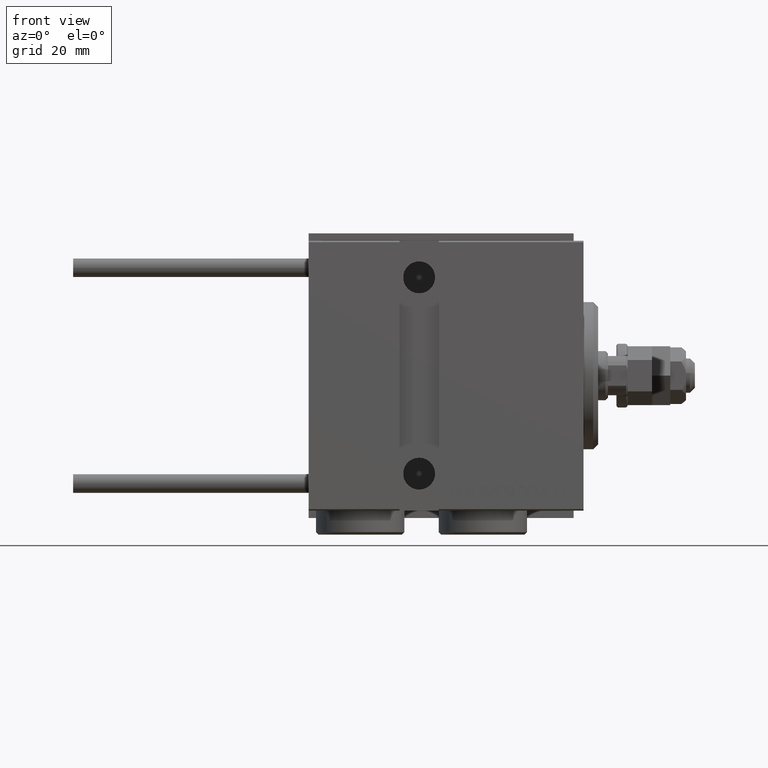
[diagram: clean part render]
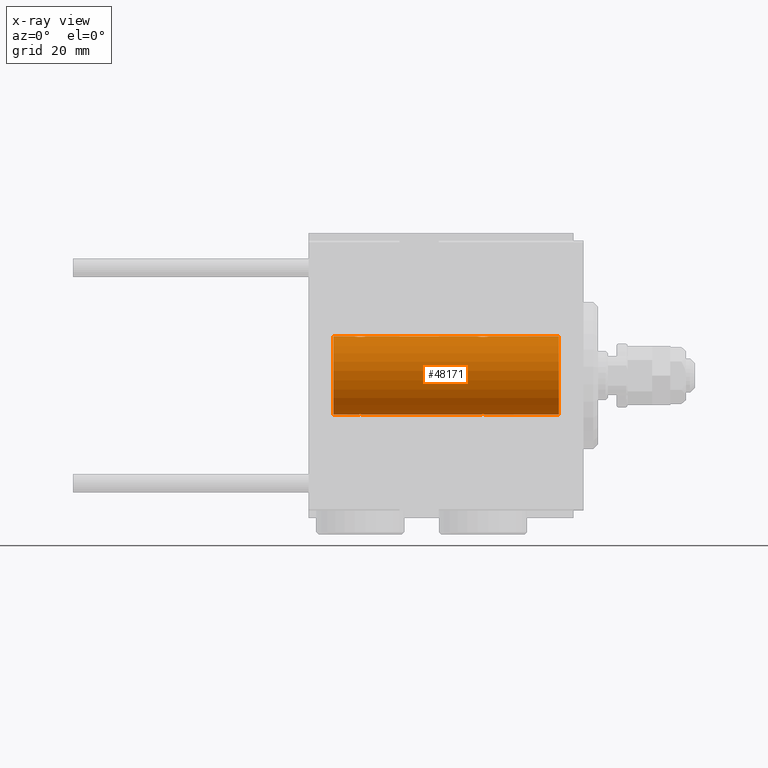
[diagram: x-ray — body ghosted, one internal face saturated and labeled with its STEP entity id]
A machine part, front view, then the same camera in x-ray: the body is ghosted and one INTERNAL B-rep face — a face not visible from any outside direction — is saturated and labeled: STEP entity #48171.
In plain terms, the highlighted cylindrical surface (partial cylindrical patch) has radius 8 mm, axis along (1, 0, -0).
Its self-contained STEP definition (entity closure, byte-faithful):
#108 = CARTESIAN_POINT ( 'NONE',  ( 46.59204967621045057, 0.6298709050361936956, -7.976604806854522778 ) ) ;
#207 = ORIENTED_EDGE ( 'NONE', *, *, #2543, .T. ) ;
#208 = DIRECTION ( 'NONE',  ( -1.000000000000000000, -0.000000000000000000, -0.000000000000000000 ) ) ;
#365 = CARTESIAN_POINT ( 'NONE',  ( 46.75000000000000000, 0.08164616652084634441, -8.000000000000000000 ) ) ;
#370 = CARTESIAN_POINT ( 'NONE',  ( 4.999999999999997335, 0.000000000000000000, 7.999999999999998224 ) ) ;
#451 = ORIENTED_EDGE ( 'NONE', *, *, #39959, .F. ) ;
#1500 = CARTESIAN_POINT ( 'NONE',  ( 51.00000000000000000, 9.797174393178823685E-16, -7.999999999999998224 ) ) ;
#1558 = EDGE_CURVE ( 'NONE', #29601, #34181, #15198, .T. ) ;
#2141 = CARTESIAN_POINT ( 'NONE',  ( 21.59204967621043991, 0.6298709050361920303, -7.976604806854521001 ) ) ;
#2253 = DIRECTION ( 'NONE',  ( -1.000000000000000000, -0.000000000000000000, -0.000000000000000000 ) ) ;
#2528 = VERTEX_POINT ( 'NONE', #29777 ) ;
#2543 = EDGE_CURVE ( 'NONE', #20515, #31129, #44392, .T. ) ;
#2823 = CARTESIAN_POINT ( 'NONE',  ( 44.25000000000000711, -4.052181254894032391E-23, 7.999999999999998224 ) ) ;
#2946 = CARTESIAN_POINT ( 'NONE',  ( 44.25000000000000711, -6.574401834785964054E-15, -7.999999999999998224 ) ) ;
#3200 = CARTESIAN_POINT ( 'NONE',  ( 44.50115498801908842, 0.7689725568822843860, -7.963798983873343396 ) ) ;
#3386 = EDGE_CURVE ( 'NONE', #36213, #3907, #49416, .T. ) ;
#3441 = VERTEX_POINT ( 'NONE', #17867 ) ;
#3469 = CARTESIAN_POINT ( 'NONE',  ( 45.90257413385905494, 1.186236229830389455, -7.911627449023362679 ) ) ;
#3474 = CIRCLE ( 'NONE', #48888, 7.999999999999998224 ) ;
#3907 = VERTEX_POINT ( 'NONE', #370 ) ;
#4076 = CARTESIAN_POINT ( 'NONE',  ( 21.59173022154696753, 0.6304521543648642368, 7.976560245937300841 ) ) ;
#5726 = CARTESIAN_POINT ( 'NONE',  ( 44.87017729360625395, 1.092113850919002038, 7.925358570881160247 ) ) ;
#5778 = CARTESIAN_POINT ( 'NONE',  ( 21.26739091610630084, 1.000368629246204399, -7.938072339095202601 ) ) ;
#5943 = CARTESIAN_POINT ( 'NONE',  ( 51.00000000000000000, 0.000000000000000000, 7.999999999999998224 ) ) ;
#6234 = CARTESIAN_POINT ( 'NONE',  ( 46.49884501198091158, 0.7689725568822900481, 7.963798983873341619 ) ) ;
#7090 = CARTESIAN_POINT ( 'NONE',  ( 44.25000000000000711, -6.574401834785964054E-15, -7.999999999999998224 ) ) ;
#7178 = CARTESIAN_POINT ( 'NONE',  ( 21.75000000000000000, 0.1654536524218027937, 7.999999999999998224 ) ) ;
#7443 = CARTESIAN_POINT ( 'NONE',  ( 19.73260908389369916, 1.000368629246206842, 7.938072339095197272 ) ) ;
#8521 = B_SPLINE_CURVE_WITH_KNOTS ( 'NONE', 3,
 ( #39505, #7178, #47272, #4076, #11834, #22948, #39254, #22693, #30718, #19849, #46742, #42353, #19587, #11307, #7443, #15444, #27627, #30460, #46482, #15712, #35638, #38474 ),
 .UNSPECIFIED., .F., .F.,
 ( 4, 2, 2, 2, 2, 2, 2, 2, 2, 2, 4 ),
 ( 4.925698363725794783E-19, 0.0004892585179631285617, 0.0009785170359262564729, 0.001467775553889384601, 0.001957034071852512512, 0.002201663330834071480, 0.002446292589815630015, 0.002935551107778737977, 0.003424809625741846372, 0.003669438884723400570, 0.003914068143704954768 ),
 .UNSPECIFIED. ) ;
#8672 = CARTESIAN_POINT ( 'NONE',  ( 19.25000000000000711, 0.1654536524217966875, -8.000000000000000000 ) ) ;
#9612 = CARTESIAN_POINT ( 'NONE',  ( 44.25000000000001421, 0.08164616652084527582, 7.999999999999998224 ) ) ;
#10433 = CARTESIAN_POINT ( 'NONE',  ( 51.00000000000000000, 0.000000000000000000, 0.000000000000000000 ) ) ;
#10809 = CARTESIAN_POINT ( 'NONE',  ( 51.00000000000000000, 9.797174393178823685E-16, -7.999999999999998224 ) ) ;
#11225 = CARTESIAN_POINT ( 'NONE',  ( 45.17150130922779283, 1.217000984963200416, -7.907141142849010151 ) ) ;
#11307 = CARTESIAN_POINT ( 'NONE',  ( 19.87017729360625395, 1.092113850919000928, 7.925358570881162024 ) ) ;
#11480 = CARTESIAN_POINT ( 'NONE',  ( 46.12982270639373183, 1.092113850918999818, -7.925358570881163800 ) ) ;
#11834 = CARTESIAN_POINT ( 'NONE',  ( 21.49884501198092579, 0.7689725568822877166, 7.963798983873341619 ) ) ;
#12007 = CARTESIAN_POINT ( 'NONE',  ( 46.74181525892407052, 0.1645871186493928495, -7.998709545350109806 ) ) ;
#13360 = B_SPLINE_CURVE_WITH_KNOTS ( 'NONE', 3,
 ( #24196, #8672, #39957, #20545, #36345, #41210, #13780, #29077, #25948, #17421, #45332, #49718, #44844, #37343, #5778, #49460, #2141, #30084, #37086, #29825, #21795, #49214 ),
 .UNSPECIFIED., .F., .F.,
 ( 4, 2, 2, 2, 2, 2, 2, 2, 2, 2, 4 ),
 ( 4.384776375612755932E-19, 0.0004892585179631271522, 0.0009785170359262538708, 0.001467775553889380698, 0.001957034071852507308, 0.002201663330834065842, 0.002446292589815623510, 0.002935551107778730170, 0.003424809625741835964, 0.003669438884723391463, 0.003914068143704946962 ),
 .UNSPECIFIED. ) ;
#13731 = CARTESIAN_POINT ( 'NONE',  ( 46.26853298044905216, 0.9991832710565884401, 7.938201675418735448 ) ) ;
#13780 = CARTESIAN_POINT ( 'NONE',  ( 19.87074834296262438, 1.092266057037466487, -7.925334523600932712 ) ) ;
#14235 = CARTESIAN_POINT ( 'NONE',  ( 44.25818474107593659, 0.1645871186493931548, 7.998709545350111583 ) ) ;
#14484 = CARTESIAN_POINT ( 'NONE',  ( 44.40795032378955653, 0.6298709050361934736, 7.976604806854521001 ) ) ;
#15198 = LINE ( 'NONE', #10809, #51074 ) ;
#15361 = CARTESIAN_POINT ( 'NONE',  ( 44.87074834296262082, 1.092266057037466265, -7.925334523600929160 ) ) ;
#15444 = CARTESIAN_POINT ( 'NONE',  ( 19.49968017762932959, 0.7674545364220068944, 7.963965305651043991 ) ) ;
#15712 = CARTESIAN_POINT ( 'NONE',  ( 19.25818474107593659, 0.1645871186493936822, 7.998709545350108918 ) ) ;
#16113 = EDGE_CURVE ( 'NONE', #29591, #29468, #17454, .T. ) ;
#16925 = CARTESIAN_POINT ( 'NONE',  ( 46.74999999999999289, 9.797173987957720246E-16, -7.999999999999998224 ) ) ;
#17371 = CIRCLE ( 'NONE', #28145, 7.999999999999998224 ) ;
#17421 = CARTESIAN_POINT ( 'NONE',  ( 20.58119849493555620, 1.250030652953401988, -7.901735465557267801 ) ) ;
#17454 = B_SPLINE_CURVE_WITH_KNOTS ( 'NONE', 3,
 ( #2946, #26497, #19243, #22863, #3200, #50533, #15361, #11225, #31151, #27006, #42776, #38911, #3469, #11480, #27272, #32444, #108, #40184, #28553, #12007, #365, #31676 ),
 .UNSPECIFIED., .F., .F.,
 ( 4, 2, 2, 2, 2, 2, 2, 2, 2, 2, 4 ),
 ( 7.505074081152076538E-19, 0.0004892585179630999388, 0.0009785170359261990101, 0.001467775553889298082, 0.001957034071852397587, 0.002201663330833957422, 0.002446292589815517258, 0.002935551107778656445, 0.003424809625741795632, 0.003669438884723368911, 0.003914068143704942625 ),
 .UNSPECIFIED. ) ;
#17621 = CARTESIAN_POINT ( 'NONE',  ( 46.59173022154698884, 0.6304521543648644588, 7.976560245937302618 ) ) ;
#17860 = CARTESIAN_POINT ( 'NONE',  ( 46.71733208341543531, 0.3277916934117521830, 7.994719249713582165 ) ) ;
#17867 = CARTESIAN_POINT ( 'NONE',  ( 51.00000000000000000, 0.000000000000000000, 7.999999999999998224 ) ) ;
#19243 = CARTESIAN_POINT ( 'NONE',  ( 44.28266791658455759, 0.3277916934117462988, -7.994719249713585718 ) ) ;
#19587 = CARTESIAN_POINT ( 'NONE',  ( 20.09742586614093085, 1.186236229830392341, 7.911627449023364456 ) ) ;
#19849 = CARTESIAN_POINT ( 'NONE',  ( 20.41880150506445091, 1.250030652953407762, 7.901735465557271354 ) ) ;
#20515 = VERTEX_POINT ( 'NONE', #38710 ) ;
#20545 = CARTESIAN_POINT ( 'NONE',  ( 19.40826977845302537, 0.6304521543648575754, -7.976560245937306171 ) ) ;
#21351 = CARTESIAN_POINT ( 'NONE',  ( 51.00000000000000000, 0.000000000000000000, 7.999999999999998224 ) ) ;
#21407 = LINE ( 'NONE', #1500, #42708 ) ;
#21495 = CARTESIAN_POINT ( 'NONE',  ( 45.82849869077222138, 1.217000984963205967, 7.907141142849010151 ) ) ;
#21701 = EDGE_CURVE ( 'NONE', #3907, #34181, #3474, .T. ) ;
#21703 = DIRECTION ( 'NONE',  ( -1.000000000000000000, -0.000000000000000000, -0.000000000000000000 ) ) ;
#21795 = CARTESIAN_POINT ( 'NONE',  ( 21.75000000000000000, 0.08164616652084619175, -7.999999999999998224 ) ) ;
#21837 = CARTESIAN_POINT ( 'NONE',  ( 19.25000000000000355, -4.052141811848771341E-23, 7.999999999999998224 ) ) ;
#21957 = CARTESIAN_POINT ( 'NONE',  ( 51.00000000000000000, 9.797174393178823685E-16, -7.999999999999998224 ) ) ;
#21993 = CARTESIAN_POINT ( 'NONE',  ( 44.73260908389369916, 1.000368629246204843, 7.938072339095200824 ) ) ;
#22249 = CARTESIAN_POINT ( 'NONE',  ( 44.25000000000000711, -4.052181254894032391E-23, 7.999999999999998224 ) ) ;
#22557 = DIRECTION ( 'NONE',  ( -1.000000000000000000, -0.000000000000000000, -0.000000000000000000 ) ) ;
#22573 = EDGE_CURVE ( 'NONE', #31129, #44069, #44902, .T. ) ;
#22693 = CARTESIAN_POINT ( 'NONE',  ( 20.82849869077221783, 1.217000984963207966, 7.907141142849010151 ) ) ;
#22863 = CARTESIAN_POINT ( 'NONE',  ( 44.40826977845300405, 0.6304521543648577975, -7.976560245937304394 ) ) ;
#22877 = EDGE_CURVE ( 'NONE', #29601, #2528, #13360, .T. ) ;
#22948 = CARTESIAN_POINT ( 'NONE',  ( 21.26853298044905216, 0.9991832710565867748, 7.938201675418735448 ) ) ;
#23445 = ORIENTED_EDGE ( 'NONE', *, *, #50894, .F. ) ;
#23754 = ORIENTED_EDGE ( 'NONE', *, *, #22573, .T. ) ;
#24196 = CARTESIAN_POINT ( 'NONE',  ( 19.25000000000000711, -6.253246997522681077E-15, -7.999999999999998224 ) ) ;
#25398 = CARTESIAN_POINT ( 'NONE',  ( 4.999999999999997335, 9.797174393178823685E-16, -7.999999999999998224 ) ) ;
#25948 = CARTESIAN_POINT ( 'NONE',  ( 20.33619145091235936, 1.249938428426572656, -7.901750054830717573 ) ) ;
#26016 = EDGE_LOOP ( 'NONE', ( #29905, #23445, #36871, #207, #23754, #40311, #50051, #46433, #37463, #41864, #451, #36690 ) ) ;
#26241 = CARTESIAN_POINT ( 'NONE',  ( 21.75000000000000000, -5.069746561688950233E-16, 7.999999999999998224 ) ) ;
#26404 = CARTESIAN_POINT ( 'NONE',  ( 46.12925165703737207, 1.092266057037471594, 7.925334523600927383 ) ) ;
#26443 = LINE ( 'NONE', #42211, #35489 ) ;
#26497 = CARTESIAN_POINT ( 'NONE',  ( 44.25000000000001421, 0.1654536524217962712, -8.000000000000000000 ) ) ;
#26985 = DIRECTION ( 'NONE',  ( 0.000000000000000000, 0.000000000000000000, 1.000000000000000000 ) ) ;
#27006 = CARTESIAN_POINT ( 'NONE',  ( 45.58119849493557751, 1.250030652953401322, -7.901735465557271354 ) ) ;
#27272 = CARTESIAN_POINT ( 'NONE',  ( 46.26739091610629373, 1.000368629246204399, -7.938072339095200824 ) ) ;
#27627 = CARTESIAN_POINT ( 'NONE',  ( 19.40795032378956364, 0.6298709050361938067, 7.976604806854522778 ) ) ;
#28100 = EDGE_CURVE ( 'NONE', #44069, #36213, #8521, .T. ) ;
#28145 = AXIS2_PLACEMENT_3D ( 'NONE', #10433, #30099, #26985 ) ;
#28399 = CYLINDRICAL_SURFACE ( 'NONE', #28837, 7.999999999999998224 ) ;
#28553 = CARTESIAN_POINT ( 'NONE',  ( 46.70976650520091766, 0.3250523954932729165, -7.993796610540221614 ) ) ;
#28837 = AXIS2_PLACEMENT_3D ( 'NONE', #39780, #208, #32537 ) ;
#29077 = CARTESIAN_POINT ( 'NONE',  ( 20.17150130922778573, 1.217000984963200860, -7.907141142849008375 ) ) ;
#29468 = VERTEX_POINT ( 'NONE', #16925 ) ;
#29591 = VERTEX_POINT ( 'NONE', #7090 ) ;
#29601 = VERTEX_POINT ( 'NONE', #39162 ) ;
#29777 = CARTESIAN_POINT ( 'NONE',  ( 21.75000000000000355, 9.797173987965608855E-16, -7.999999999999998224 ) ) ;
#29825 = CARTESIAN_POINT ( 'NONE',  ( 21.74181525892405986, 0.1645871186493928773, -7.998709545350109806 ) ) ;
#29905 = ORIENTED_EDGE ( 'NONE', *, *, #45473, .F. ) ;
#30057 = EDGE_CURVE ( 'NONE', #3441, #20515, #32867, .T. ) ;
#30084 = CARTESIAN_POINT ( 'NONE',  ( 21.68608944587722576, 0.4029817482954558550, -7.990203133273719338 ) ) ;
#30099 = DIRECTION ( 'NONE',  ( -1.000000000000000000, 0.000000000000000000, 0.000000000000000000 ) ) ;
#30460 = CARTESIAN_POINT ( 'NONE',  ( 19.31391055412277069, 0.4029817482954574648, 7.990203133273719338 ) ) ;
#30542 = CARTESIAN_POINT ( 'NONE',  ( 45.66380854908764775, 1.249938428426579540, 7.901750054830717573 ) ) ;
#30718 = CARTESIAN_POINT ( 'NONE',  ( 20.66380854908764064, 1.249938428426578652, 7.901750054830715797 ) ) ;
#31089 = VERTEX_POINT ( 'NONE', #21957 ) ;
#31129 = VERTEX_POINT ( 'NONE', #2823 ) ;
#31151 = CARTESIAN_POINT ( 'NONE',  ( 45.33619145091235225, 1.249938428426572656, -7.901750054830718462 ) ) ;
#31226 = DIRECTION ( 'NONE',  ( -1.000000000000000000, 0.000000000000000000, 0.000000000000000000 ) ) ;
#31676 = CARTESIAN_POINT ( 'NONE',  ( 46.74999999999999289, 9.797173987957720246E-16, -7.999999999999998224 ) ) ;
#31772 = FACE_OUTER_BOUND ( 'NONE', #26016, .T. ) ;
#32444 = CARTESIAN_POINT ( 'NONE',  ( 46.50031982237067751, 0.7674545364220052290, -7.963965305651049320 ) ) ;
#32537 = DIRECTION ( 'NONE',  ( 0.000000000000000000, 0.000000000000000000, 1.000000000000000000 ) ) ;
#32867 = LINE ( 'NONE', #5943, #34180 ) ;
#34162 = CARTESIAN_POINT ( 'NONE',  ( 45.41880150506444380, 1.250030652953406429, 7.901735465557269578 ) ) ;
#34180 = VECTOR ( 'NONE', #21703, 1000.000000000000000 ) ;
#34181 = VERTEX_POINT ( 'NONE', #25398 ) ;
#34611 = VECTOR ( 'NONE', #37792, 1000.000000000000000 ) ;
#34872 = DIRECTION ( 'NONE',  ( -1.000000000000000000, -0.000000000000000000, -0.000000000000000000 ) ) ;
#35110 = CARTESIAN_POINT ( 'NONE',  ( 4.999999999999997335, 0.000000000000000000, 0.000000000000000000 ) ) ;
#35489 = VECTOR ( 'NONE', #22557, 1000.000000000000000 ) ;
#35638 = CARTESIAN_POINT ( 'NONE',  ( 19.25000000000000355, 0.08164616652084565052, 7.999999999999996447 ) ) ;
#36213 = VERTEX_POINT ( 'NONE', #21837 ) ;
#36345 = CARTESIAN_POINT ( 'NONE',  ( 19.50115498801909197, 0.7689725568822818325, -7.963798983873345172 ) ) ;
#36690 = ORIENTED_EDGE ( 'NONE', *, *, #16113, .T. ) ;
#36871 = ORIENTED_EDGE ( 'NONE', *, *, #30057, .T. ) ;
#37086 = CARTESIAN_POINT ( 'NONE',  ( 21.70976650520091411, 0.3250523954932730830, -7.993796610540221614 ) ) ;
#37343 = CARTESIAN_POINT ( 'NONE',  ( 21.12982270639374605, 1.092113850918997153, -7.925358570881165576 ) ) ;
#37463 = ORIENTED_EDGE ( 'NONE', *, *, #1558, .F. ) ;
#37786 = CARTESIAN_POINT ( 'NONE',  ( 44.31391055412278490, 0.4029817482954566876, 7.990203133273719338 ) ) ;
#37792 = DIRECTION ( 'NONE',  ( -1.000000000000000000, -0.000000000000000000, -0.000000000000000000 ) ) ;
#38299 = CARTESIAN_POINT ( 'NONE',  ( 45.17540961683120315, 1.209888574283871199, 7.907997942808294489 ) ) ;
#38474 = CARTESIAN_POINT ( 'NONE',  ( 19.25000000000000355, -4.052141811848771341E-23, 7.999999999999998224 ) ) ;
#38710 = CARTESIAN_POINT ( 'NONE',  ( 46.74999999999999289, -8.213474395867002827E-16, 7.999999999999998224 ) ) ;
#38911 = CARTESIAN_POINT ( 'NONE',  ( 45.82459038316879685, 1.209888574283866980, -7.907997942808293601 ) ) ;
#39162 = CARTESIAN_POINT ( 'NONE',  ( 19.25000000000000711, -6.253246997522681077E-15, -7.999999999999998224 ) ) ;
#39240 = DIRECTION ( 'NONE',  ( 0.000000000000000000, 0.000000000000000000, 1.000000000000000000 ) ) ;
#39254 = CARTESIAN_POINT ( 'NONE',  ( 21.12925165703737918, 1.092266057037473592, 7.925334523600929160 ) ) ;
#39505 = CARTESIAN_POINT ( 'NONE',  ( 21.75000000000000000, -5.069746561688950233E-16, 7.999999999999998224 ) ) ;
#39745 = VECTOR ( 'NONE', #49778, 1000.000000000000000 ) ;
#39780 = CARTESIAN_POINT ( 'NONE',  ( 51.00000000000000000, 0.000000000000000000, 0.000000000000000000 ) ) ;
#39957 = CARTESIAN_POINT ( 'NONE',  ( 19.28266791658456825, 0.3277916934117463543, -7.994719249713585718 ) ) ;
#39959 = EDGE_CURVE ( 'NONE', #29591, #2528, #21407, .T. ) ;
#40184 = CARTESIAN_POINT ( 'NONE',  ( 46.68608944587722220, 0.4029817482954573538, -7.990203133273721114 ) ) ;
#40311 = ORIENTED_EDGE ( 'NONE', *, *, #28100, .T. ) ;
#41210 = CARTESIAN_POINT ( 'NONE',  ( 19.73146701955095494, 0.9991832710565806686, -7.938201675418735448 ) ) ;
#41665 = CARTESIAN_POINT ( 'NONE',  ( 46.75000000000000000, 0.1654536524218023774, 7.999999999999998224 ) ) ;
#41864 = ORIENTED_EDGE ( 'NONE', *, *, #22877, .T. ) ;
#41920 = CARTESIAN_POINT ( 'NONE',  ( 51.00000000000000000, 0.000000000000000000, 7.999999999999998224 ) ) ;
#42168 = CARTESIAN_POINT ( 'NONE',  ( 44.29023349479908234, 0.3250523954932734161, 7.993796610540221614 ) ) ;
#42211 = CARTESIAN_POINT ( 'NONE',  ( 51.00000000000000000, 9.797174393178823685E-16, -7.999999999999998224 ) ) ;
#42353 = CARTESIAN_POINT ( 'NONE',  ( 20.17540961683120315, 1.209888574283871199, 7.907997942808293601 ) ) ;
#42708 = VECTOR ( 'NONE', #2253, 1000.000000000000000 ) ;
#42776 = CARTESIAN_POINT ( 'NONE',  ( 45.66417091690310315, 1.241868426634441969, -7.903038949453011774 ) ) ;
#44069 = VERTEX_POINT ( 'NONE', #26241 ) ;
#44392 = B_SPLINE_CURVE_WITH_KNOTS ( 'NONE', 3,
 ( #49164, #41665, #17860, #17621, #6234, #13731, #26404, #21495, #30542, #34162, #49668, #38299, #50174, #5726, #21993, #49920, #14484, #37786, #42168, #14235, #9612, #22249 ),
 .UNSPECIFIED., .F., .F.,
 ( 4, 2, 2, 2, 2, 2, 2, 2, 2, 2, 4 ),
 ( 7.980102535687292301E-19, 0.0004892585179631255259, 0.0009785170359262504013, 0.001467775553889375277, 0.001957034071852499935, 0.002201663330834062373, 0.002446292589815624811, 0.002935551107778730170, 0.003424809625741836398, 0.003669438884723392764, 0.003914068143704949564 ),
 .UNSPECIFIED. ) ;
#44844 = CARTESIAN_POINT ( 'NONE',  ( 20.90257413385907270, 1.186236229830388345, -7.911627449023368008 ) ) ;
#44902 = LINE ( 'NONE', #21351, #39745 ) ;
#45332 = CARTESIAN_POINT ( 'NONE',  ( 20.66417091690312091, 1.241868426634441747, -7.903038949453011774 ) ) ;
#45473 = EDGE_CURVE ( 'NONE', #31089, #29468, #26443, .T. ) ;
#46433 = ORIENTED_EDGE ( 'NONE', *, *, #21701, .T. ) ;
#46482 = CARTESIAN_POINT ( 'NONE',  ( 19.29023349479908234, 0.3250523954932734716, 7.993796610540219838 ) ) ;
#46742 = CARTESIAN_POINT ( 'NONE',  ( 20.33582908309688975, 1.241868426634447298, 7.903038949453013551 ) ) ;
#47272 = CARTESIAN_POINT ( 'NONE',  ( 21.71733208341543175, 0.3277916934117525161, 7.994719249713582165 ) ) ;
#48171 = ADVANCED_FACE ( 'NONE', ( #31772 ), #28399, .F. ) ;
#48888 = AXIS2_PLACEMENT_3D ( 'NONE', #35110, #31226, #39240 ) ;
#49164 = CARTESIAN_POINT ( 'NONE',  ( 46.74999999999999289, -8.213474395867002827E-16, 7.999999999999998224 ) ) ;
#49214 = CARTESIAN_POINT ( 'NONE',  ( 21.75000000000000355, 9.797173987965608855E-16, -7.999999999999998224 ) ) ;
#49416 = LINE ( 'NONE', #41920, #34611 ) ;
#49460 = CARTESIAN_POINT ( 'NONE',  ( 21.50031982237068107, 0.7674545364220053401, -7.963965305651049320 ) ) ;
#49668 = CARTESIAN_POINT ( 'NONE',  ( 45.33582908309688975, 1.241868426634446854, 7.903038949453013551 ) ) ;
#49718 = CARTESIAN_POINT ( 'NONE',  ( 20.82459038316880395, 1.209888574283866758, -7.907997942808293601 ) ) ;
#49778 = DIRECTION ( 'NONE',  ( -1.000000000000000000, -0.000000000000000000, -0.000000000000000000 ) ) ;
#49920 = CARTESIAN_POINT ( 'NONE',  ( 44.49968017762931538, 0.7674545364220040078, 7.963965305651043991 ) ) ;
#50051 = ORIENTED_EDGE ( 'NONE', *, *, #3386, .T. ) ;
#50174 = CARTESIAN_POINT ( 'NONE',  ( 45.09742586614095217, 1.186236229830393452, 7.911627449023366232 ) ) ;
#50533 = CARTESIAN_POINT ( 'NONE',  ( 44.73146701955094784, 0.9991832710565826670, -7.938201675418733672 ) ) ;
#50894 = EDGE_CURVE ( 'NONE', #3441, #31089, #17371, .T. ) ;
#51074 = VECTOR ( 'NONE', #34872, 1000.000000000000000 ) ;